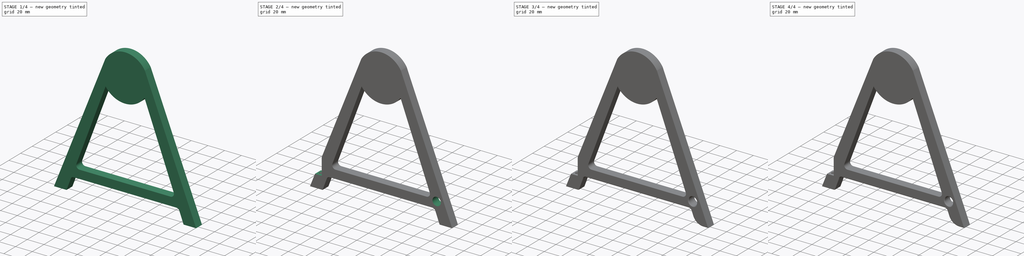
[diagram: build sequence overview — one tinted view per stage of 4, left to right]
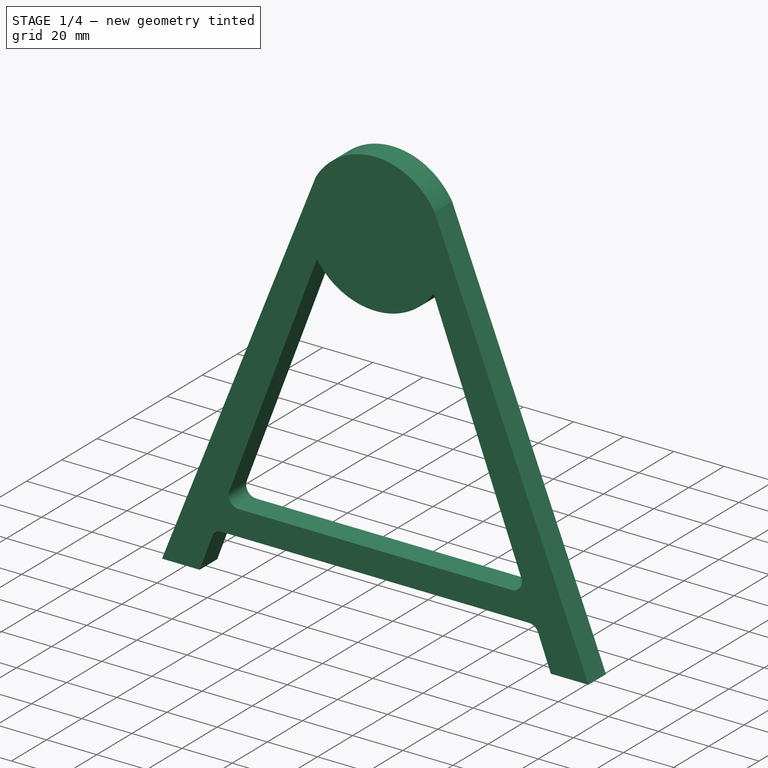
[diagram: stage 1 of 4 — iso view after this stage's code; geometry added in this stage tinted green]
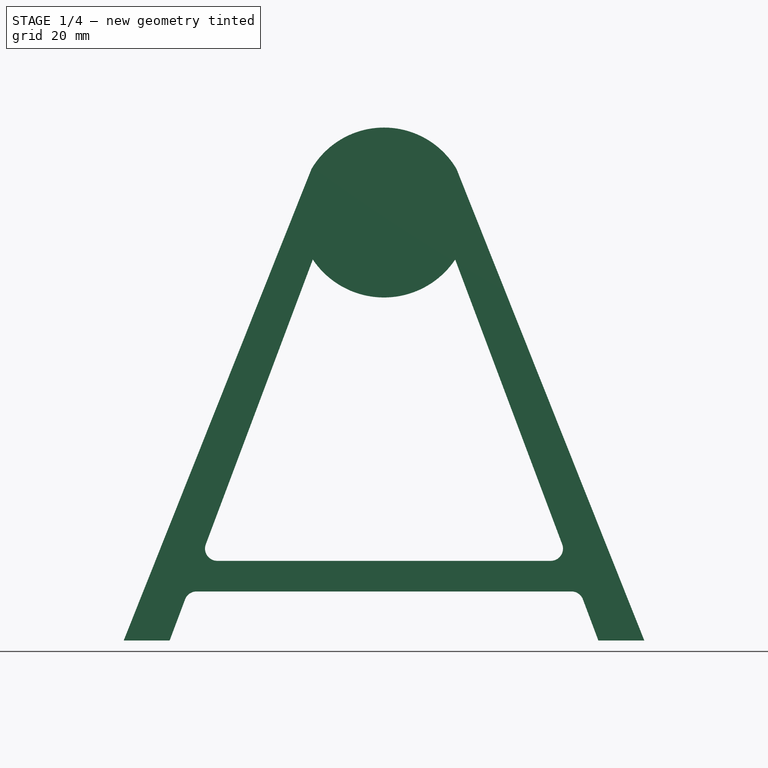
[diagram: stage 1 of 4 — front view after this stage's code; geometry added in this stage tinted green]
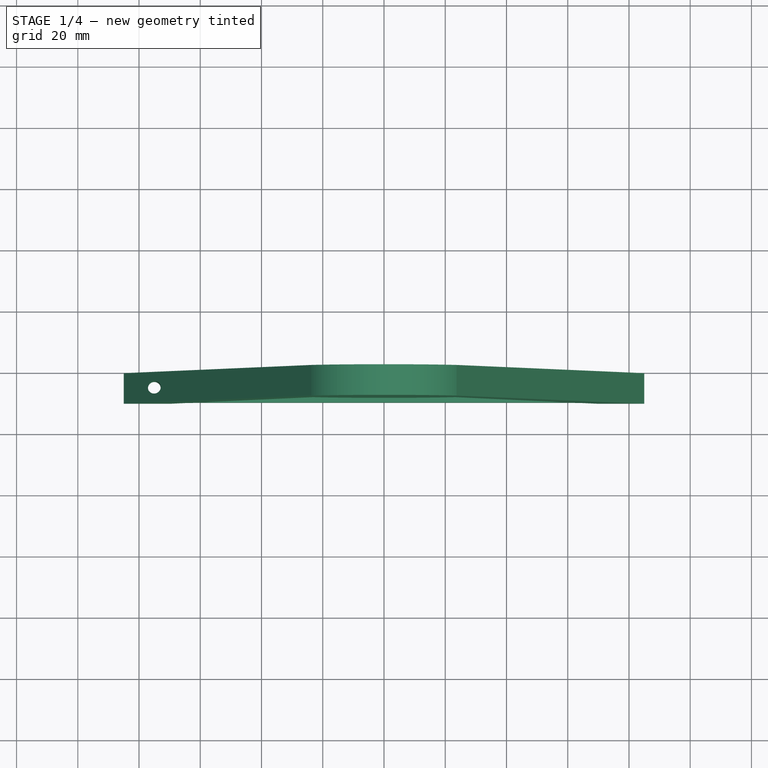
[diagram: stage 1 of 4 — top view after this stage's code; geometry added in this stage tinted green]
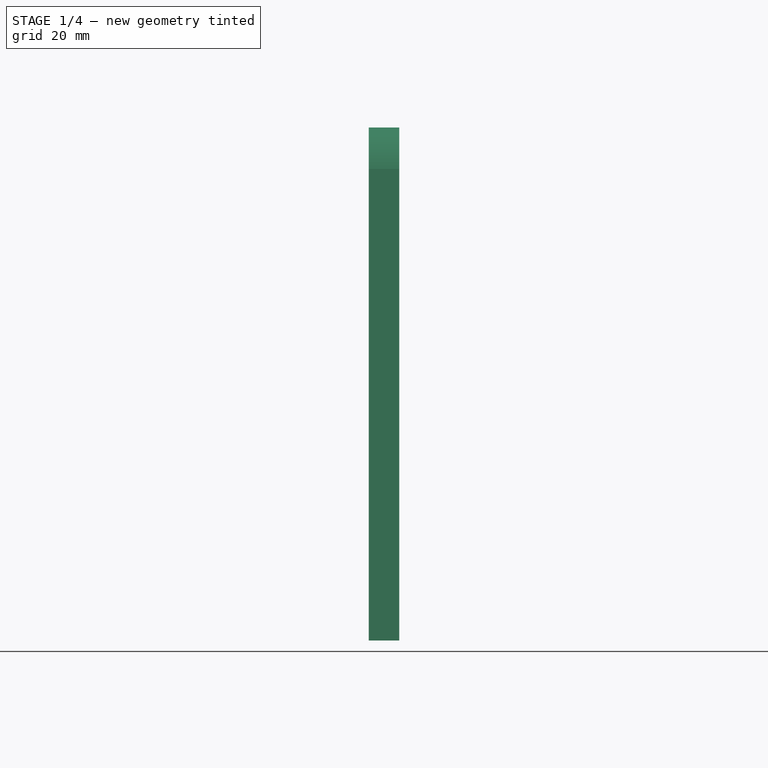
[diagram: stage 1 of 4 — right view after this stage's code; geometry added in this stage tinted green]
FCSTD DOCUMENT  (FreeCAD 0.18R16117 (Git))
Label: Support bobine PIED 2
License: All rights reserved
LicenseURL: http://en.wikipedia.org/wiki/All_rights_reserved
objects: Sketcher::SketchObject×6, PartDesign::Fillet×6, PartDesign::Pocket×5, PartDesign::Pad×1, PartDesign::Body×1
note: 25 computed .brp shape members not serialized (recipe doc carries the construction recipe); baked Part::Feature solids carry a one-line shape summary decoded from their .brp

FEATURE [Sketcher::SketchObject] Sketch
  MapMode = 5
  Placement = pos=(0,0,0) rot=(1,0,0;1.5708rad)
  Support = -> [XZ_Plane001]
  sketch-geometry (14):
    g0: Circle [constr] CenterX=0 CenterY=140 CenterZ=0 NormalX=0 NormalY=0 NormalZ=1 AngleXU=0 Radius=100
    g1: Circle [constr] CenterX=0 CenterY=140 CenterZ=0 NormalX=0 NormalY=0 NormalZ=1 AngleXU=0 Radius=27.5
    g2: ArcOfCircle CenterX=0 CenterY=140 CenterZ=0 NormalX=0 NormalY=0 NormalZ=1 AngleXU=0 Radius=27.5 StartAngle=0.534128 EndAngle=2.60746
    g3: LineSegment StartX=-23.6696 StartY=154 StartZ=0 EndX=-85 EndY=0 EndZ=0
    g4: LineSegment StartX=85 StartY=0 StartZ=0 EndX=23.6696 EndY=154 EndZ=0
    g5: LineSegment StartX=-85 StartY=0 StartZ=0 EndX=-70 EndY=0 EndZ=0
    g6: LineSegment StartX=-70 StartY=0 StartZ=0 EndX=-63.987 EndY=16 EndZ=0
    g7: LineSegment StartX=-63.987 StartY=16 StartZ=0 EndX=63.987 EndY=16 EndZ=0
    g8: LineSegment StartX=63.987 StartY=16 StartZ=0 EndX=70 EndY=0 EndZ=0
    g9: LineSegment StartX=70 StartY=0 StartZ=0 EndX=85 EndY=0 EndZ=0
    g10: LineSegment StartX=-60.2289 StartY=26 StartZ=0 EndX=60.2289 EndY=26 EndZ=0
    g11: ArcOfCircle CenterX=0 CenterY=140 CenterZ=0 NormalX=0 NormalY=0 NormalZ=1 AngleXU=0 Radius=28 StartAngle=3.73264 EndAngle=5.69214
    g12: LineSegment StartX=-60.2289 StartY=26 StartZ=0 EndX=-23.25 EndY=124.398 EndZ=0
    g13: LineSegment StartX=23.25 StartY=124.398 StartZ=0 EndX=60.2289 EndY=26 EndZ=0
  constraints (41):
    c: Radius(g0) = 100
    c: Radius(g1) = 27.5
    c: Coincident(g1,g0)
    c: Horizontal(g2,g2)
    c: Radius(g2) = 27.5
    c: Coincident(g4,g2)
    c: Coincident(g3,g2)
    c: PointOnObject(g3,g-1)
    c: Coincident(g5,g6)
    c: Coincident(g6,g7)
    c: Coincident(g7,g8)
    c: Coincident(g8,g9)
    c: Coincident(g5,g3)
    c: Coincident(g9,g4)
    c: PointOnObject(g4,g-1)
    c: Horizontal(g5)
    c: Horizontal(g9)
    c: Horizontal(g7)
    c: DistanceY(g8,g7) = 16
    c: DistanceX(g5,g5) = 15
    c: Equal(g5,g9)
    c: Coincident(g10,g12)
    c: Coincident(g10,g13)
    c: Coincident(g13,g11)
    c: Coincident(g11,g12)
    c: Radius(g11) = 28
    c: PointOnObject(g10,g6)
    c: PointOnObject(g10,g8)
    c: Horizontal(g10)
    c: DistanceY(g7,g10) = 10
    c: PointOnObject(g11,g8)
    c: PointOnObject(g11,g6)
    c: DistanceY(g-1,g2) = 140
    c: Coincident(g0,g2)
    c: Coincident(g2,g11)
    c: PointOnObject(g2,g-2)
    c: DistanceY(g2,g2) = 14
    c: DistanceX(g3,g4) = 170
    c: DistanceX(g-1,g4) = 85
    c: Horizontal(g11,g11)
    c: DistanceX(g11,g11) = 46.5
FEATURE [Sketcher::SketchObject] Sketch002
  MapMode = 5
  Placement = pos=(0,0,0) rot=(1,0,0;3.14159rad)
  sketch-geometry (1):
    g0: Circle CenterX=-75 CenterY=5 CenterZ=0 NormalX=0 NormalY=0 NormalZ=1 AngleXU=0 Radius=2.1
  constraints (3):
    c: Radius(g0) = 2.1
    c: DistanceY(g-1,g0) = 5
    c: DistanceX(g0,g-1) = 75
FEATURE [Sketcher::SketchObject] Sketch004
  MapMode = 5
  Placement = pos=(0,-10,-2e-15) rot=(1,0,0;1.5708rad)
  sketch-geometry (1):
    g0: Circle CenterX=66.5 CenterY=24 CenterZ=0 NormalX=0 NormalY=0 NormalZ=1 AngleXU=0 Radius=5
  constraints (3):
    c: Radius(g0) = 5
    c: DistanceY(g-1,g0) = 24
    c: DistanceX(g-1,g0) = 66.5
FEATURE [PartDesign::Pad] Pad
  Length = 10
  Length2 = 100
  Placement = pos=(0,0,0) rot=(1,0,0;1.5708rad)
  Profile = -> Sketch
  Type = 0
FEATURE [PartDesign::Fillet] Fillet
  Base = -> Pad [Edge11,Edge32,Edge29,Edge14]
  BaseFeature = -> Pad
  Placement = pos=(0,0,0) rot=(1,0,0;1.5708rad)
  Radius = 4
FEATURE [PartDesign::Pocket] Pocket001
  BaseFeature = -> Fillet
  Length = 5
  Length2 = 100
  Placement = pos=(0,0,0) rot=(1,0,0;1.5708rad)
  Profile = -> Sketch002
  Type = 1
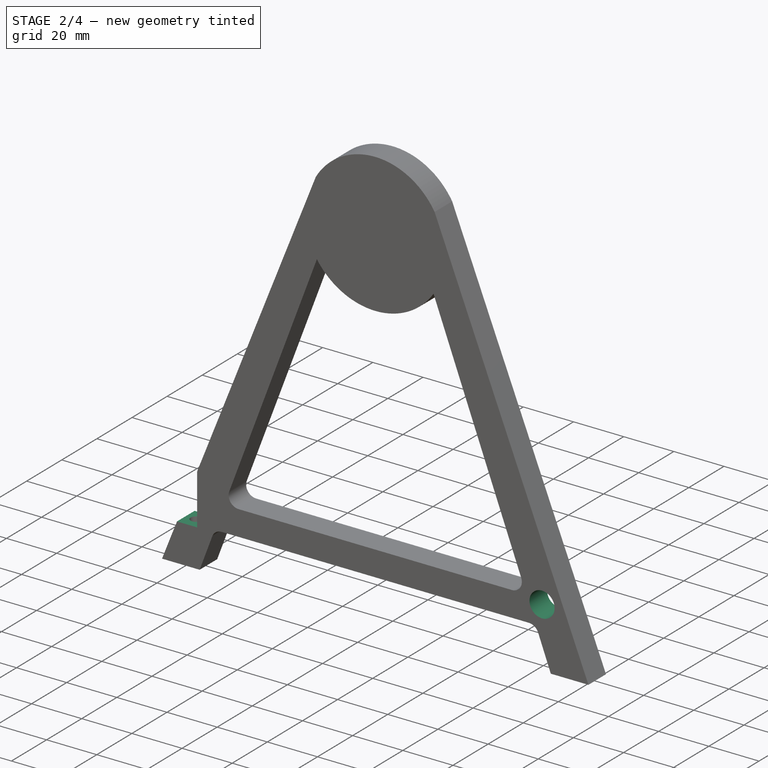
[diagram: stage 2 of 4 — iso view after this stage's code; geometry added in this stage tinted green]
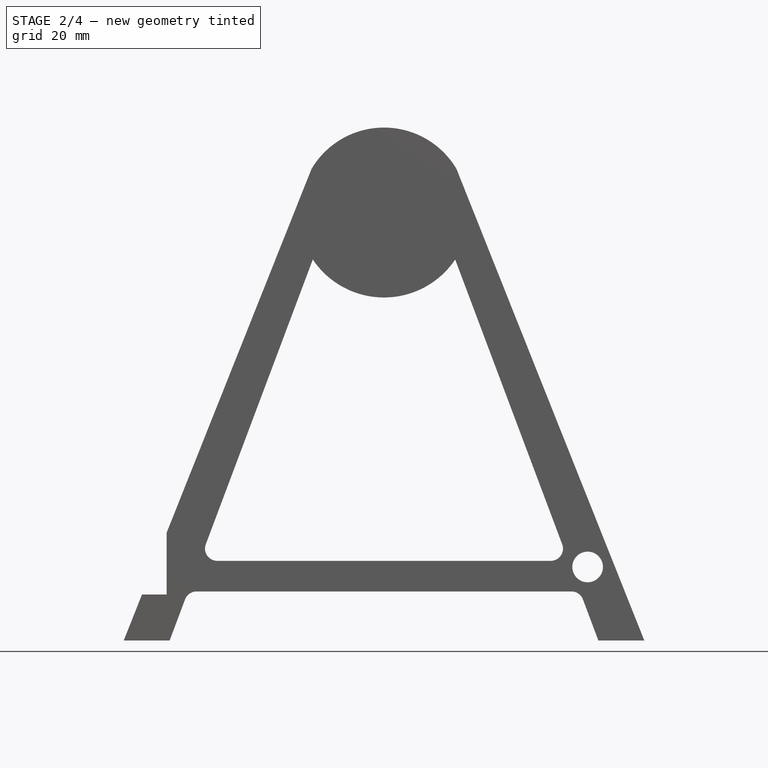
[diagram: stage 2 of 4 — front view after this stage's code; geometry added in this stage tinted green]
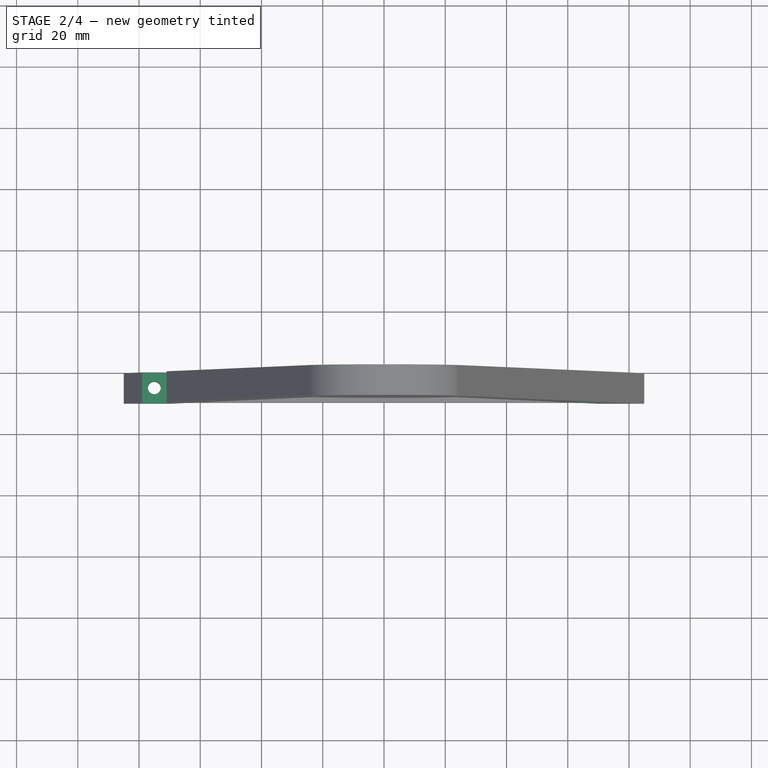
[diagram: stage 2 of 4 — top view after this stage's code; geometry added in this stage tinted green]
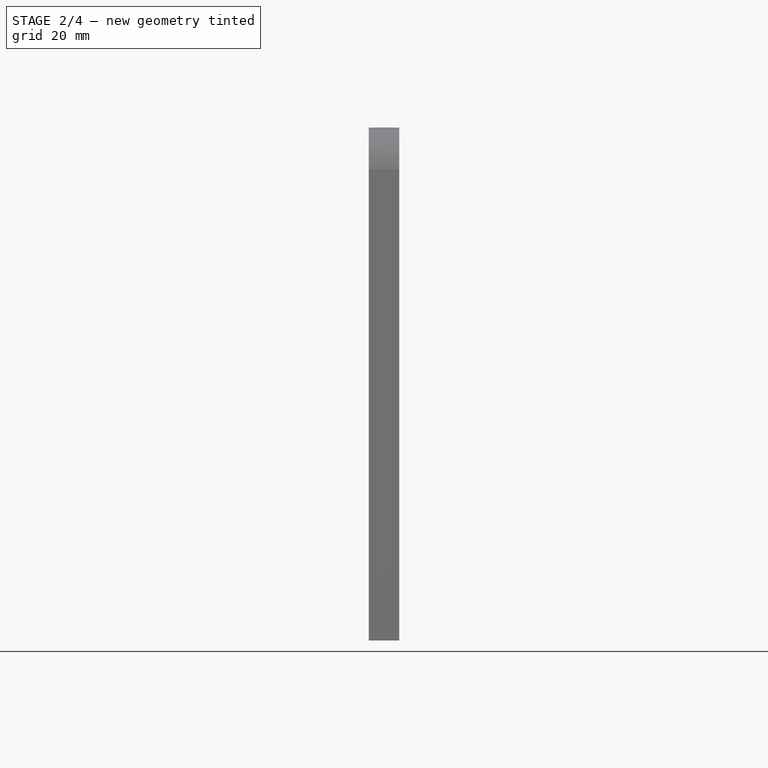
[diagram: stage 2 of 4 — right view after this stage's code; geometry added in this stage tinted green]
FEATURE [Sketcher::SketchObject] Sketch003
  MapMode = 5
  Placement = pos=(0,-10,0) rot=(1,0,0;1.5708rad)
  Support = -> [Pocket001]
  sketch-geometry (4):
    g0: LineSegment StartX=-97 StartY=40 StartZ=0 EndX=-71 EndY=40 EndZ=0
    g1: LineSegment StartX=-71 StartY=15 StartZ=0 EndX=-97 EndY=15 EndZ=0
    g2: LineSegment StartX=-97 StartY=15 StartZ=0 EndX=-97 EndY=40 EndZ=0
    g3: LineSegment StartX=-71 StartY=40 StartZ=0 EndX=-71 EndY=15 EndZ=0
  constraints (12):
    c: Coincident(g1,g2)
    c: Coincident(g2,g0)
    c: Horizontal(g0)
    c: Horizontal(g1)
    c: DistanceY(g-1,g1) = 15
    c: Vertical(g2)
    c: DistanceY(g2,g2) = 25
    c: Coincident(g3,g0)
    c: Coincident(g3,g1)
    c: DistanceX(g0,g0) = 26
    c: Vertical(g3)
    c: DistanceX(g1,g-1) = 71
FEATURE [PartDesign::Pocket] Pocket002
  BaseFeature = -> Pocket001
  Length = 5
  Length2 = 100
  Placement = pos=(0,0,0) rot=(1,0,0;1.5708rad)
  Profile = -> Sketch003
  Type = 1
FEATURE [PartDesign::Pocket] Pocket003
  BaseFeature = -> Pocket002
  Length = 5
  Length2 = 100
  Placement = pos=(0,0,0) rot=(1,0,0;1.5708rad)
  Profile = -> Sketch004
  Type = 1
FEATURE [PartDesign::Fillet] Fillet001
  Base = -> Pocket003 [Edge54,Edge52]
  BaseFeature = -> Pocket003
  Placement = pos=(0,0,0) rot=(1,0,0;1.5708rad)
  Radius = 2
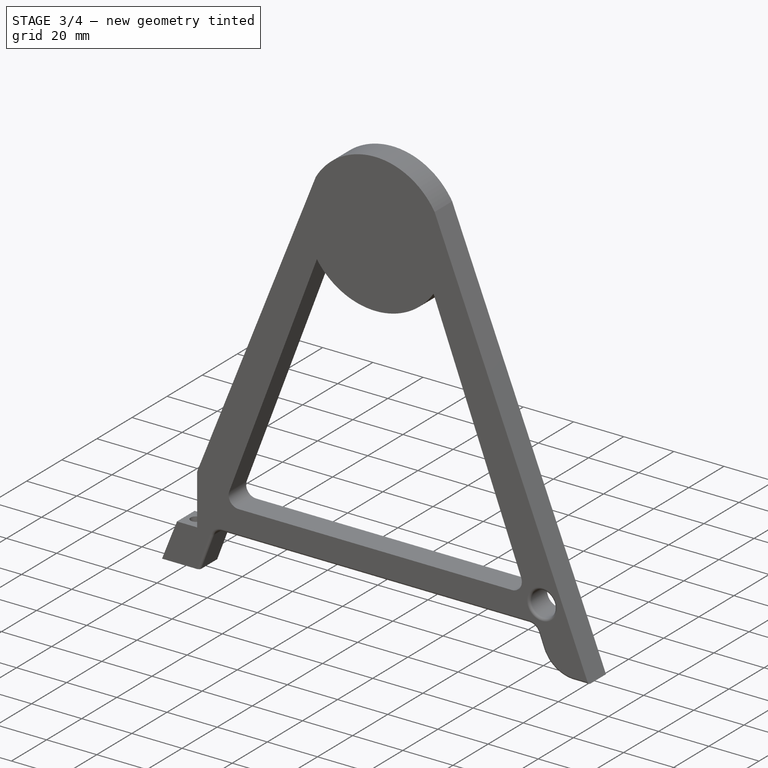
[diagram: stage 3 of 4 — iso view after this stage's code; geometry added in this stage tinted green]
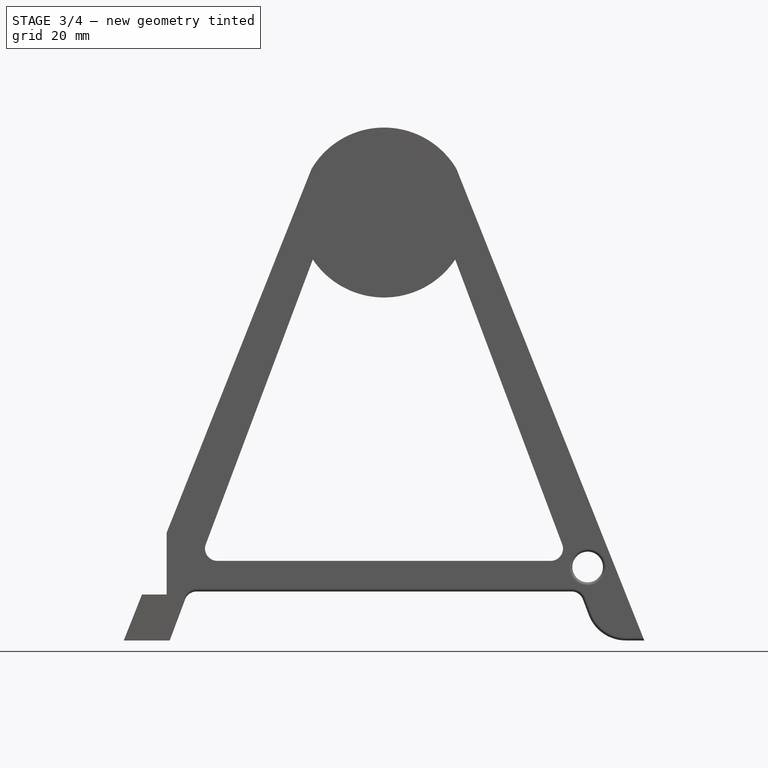
[diagram: stage 3 of 4 — front view after this stage's code; geometry added in this stage tinted green]
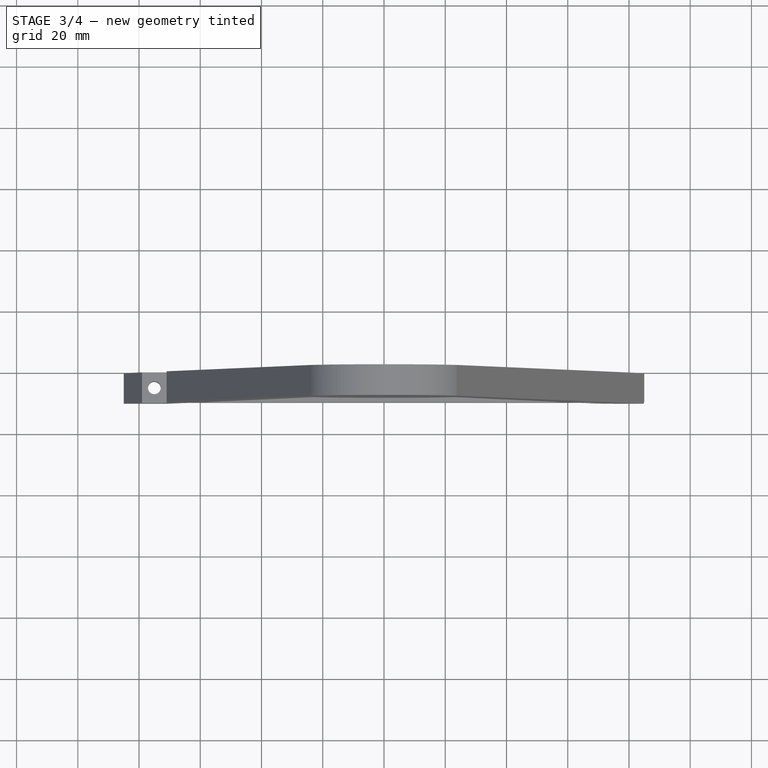
[diagram: stage 3 of 4 — top view after this stage's code; geometry added in this stage tinted green]
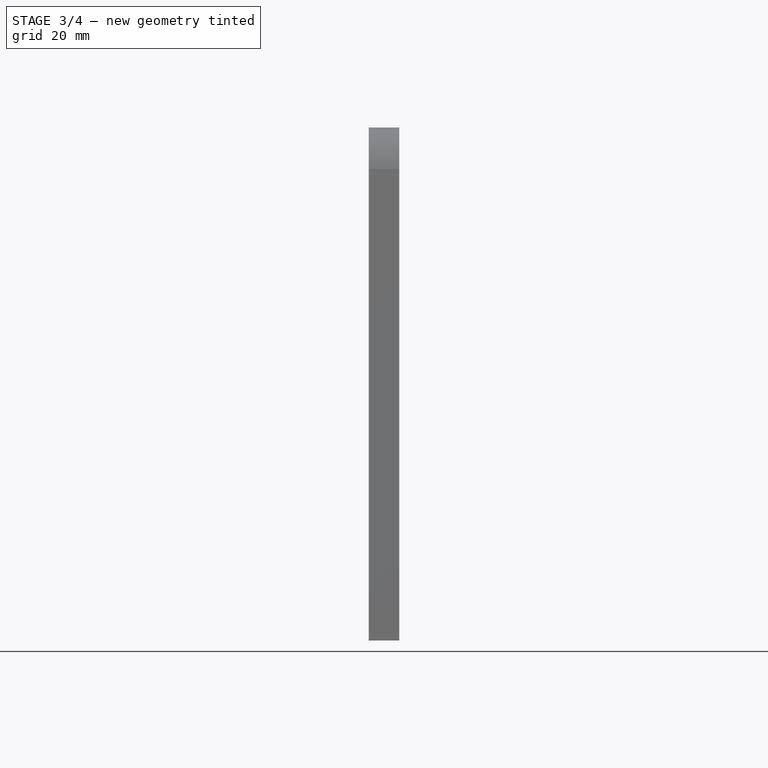
[diagram: stage 3 of 4 — right view after this stage's code; geometry added in this stage tinted green]
FEATURE [PartDesign::Fillet] Fillet002
  Base = -> Fillet001 [Edge67]
  BaseFeature = -> Fillet001
  Placement = pos=(0,0,0) rot=(1,0,0;1.5708rad)
  Radius = 1
FEATURE [PartDesign::Fillet] Fillet003
  Base = -> Fillet002 [Edge62]
  BaseFeature = -> Fillet002
  Placement = pos=(0,0,0) rot=(1,0,0;1.5708rad)
  Radius = 13
FEATURE [PartDesign::Fillet] Fillet004
  Base = -> Fillet003 [Edge36,Edge32]
  BaseFeature = -> Fillet003
  Placement = pos=(0,0,0) rot=(1,0,0;1.5708rad)
  Radius = 1
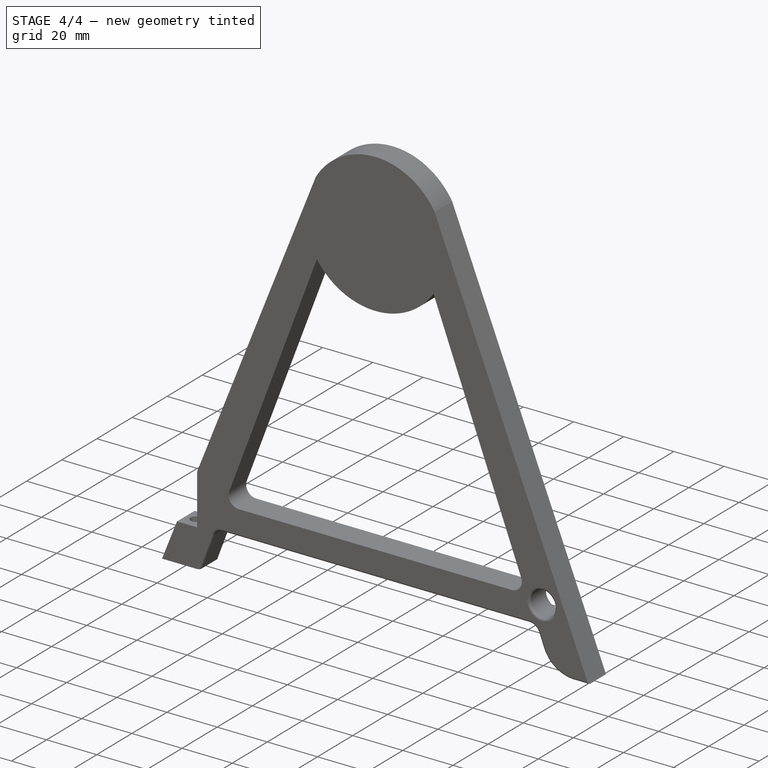
[diagram: stage 4 of 4 — iso view after this stage's code; geometry added in this stage tinted green]
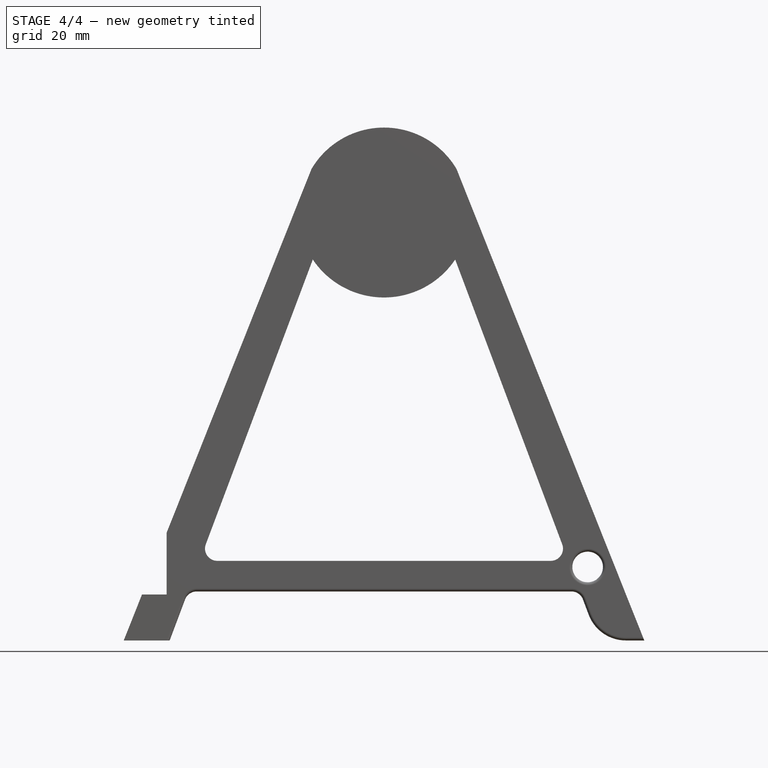
[diagram: stage 4 of 4 — front view after this stage's code; geometry added in this stage tinted green]
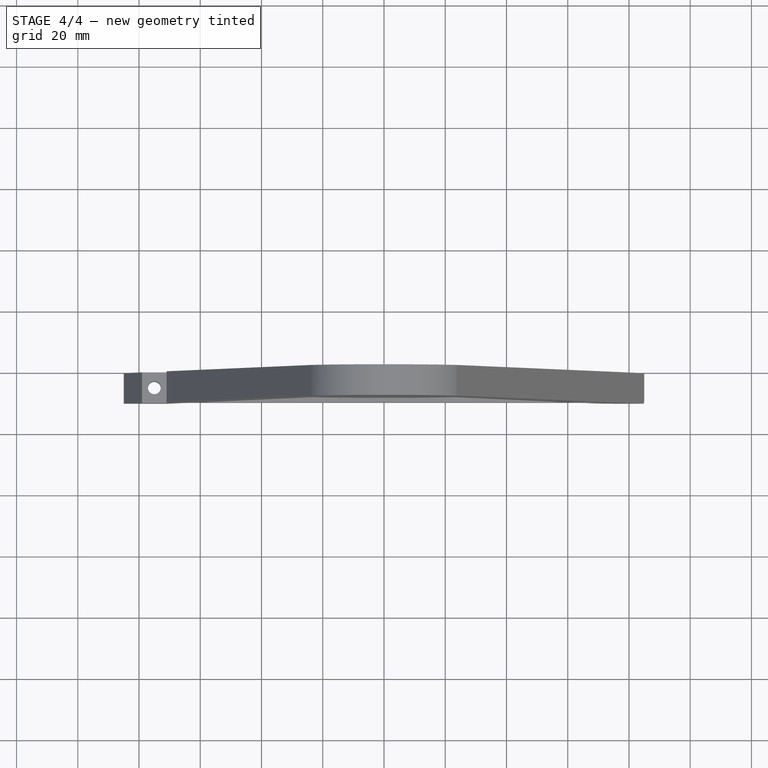
[diagram: stage 4 of 4 — top view after this stage's code; geometry added in this stage tinted green]
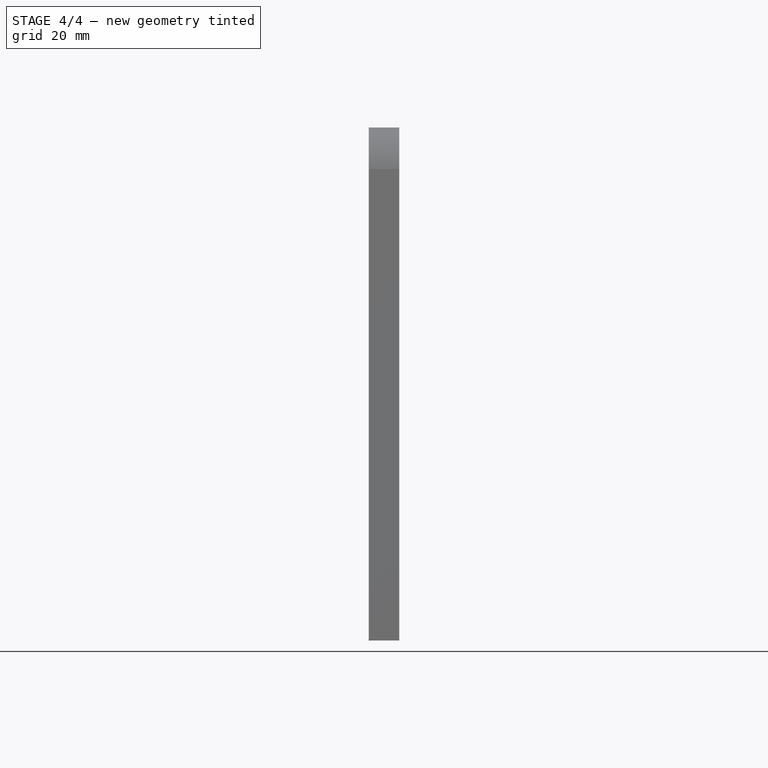
[diagram: stage 4 of 4 — right view after this stage's code; geometry added in this stage tinted green]
FEATURE [Sketcher::SketchObject] Sketch005
  MapMode = 5
  Placement = pos=(0,0,0) rot=(1,0,0;3.14159rad)
  Support = -> [Fillet004]
  sketch-geometry (1):
    g0: Circle CenterX=0 CenterY=-140 CenterZ=0 NormalX=0 NormalY=0 NormalZ=1 AngleXU=0 Radius=9.7
  constraints (3):
    c: Radius(g0) = 9.7
    c: PointOnObject(g0,g-2)
    c: DistanceY(g0,g-1) = 140
FEATURE [PartDesign::Pocket] Pocket004
  BaseFeature = -> Fillet004
  Length = 6.2
  Length2 = 100
  Placement = pos=(0,0,0) rot=(1,0,0;1.5708rad)
  Profile = -> Sketch005
  Type = 0
FEATURE [PartDesign::Fillet] Fillet005
  Base = -> Pocket004 [Edge31]
  BaseFeature = -> Pocket004
  Placement = pos=(0,0,0) rot=(1,0,0;1.5708rad)
  Radius = 1
FEATURE [Sketcher::SketchObject] Sketch006
  MapMode = 5
  Placement = pos=(0,-1e-16,0) rot=(-1,0,0;1.5708rad)
  Support = -> [Fillet005]
  sketch-geometry (1):
    g0: Circle CenterX=0 CenterY=-140 CenterZ=0 NormalX=0 NormalY=0 NormalZ=1 AngleXU=0 Radius=9.7
  constraints (3):
    c: DistanceY(g0,g-1) = 140
    c: Radius(g0) = 9.7
    c: PointOnObject(g0,g-2)
FEATURE [PartDesign::Pocket] Pocket
  BaseFeature = -> Fillet005
  Length = 6.2
  Length2 = 100
  Placement = pos=(0,0,0) rot=(1,0,0;1.5708rad)
  Profile = -> Sketch006
  Type = 0
FEATURE [PartDesign::Body] Body001
  Group = -> [Sketch,Pad,Fillet,Sketch002,Pocket001,Sketch003,Pocket002,Sketch004,Pocket003,Fillet001,Fillet002,Fillet003,Fillet004,Sketch005,Pocket004,Fillet005,Sketch006,Pocket]
  Origin = -> Origin001
  Tip = -> Pocket
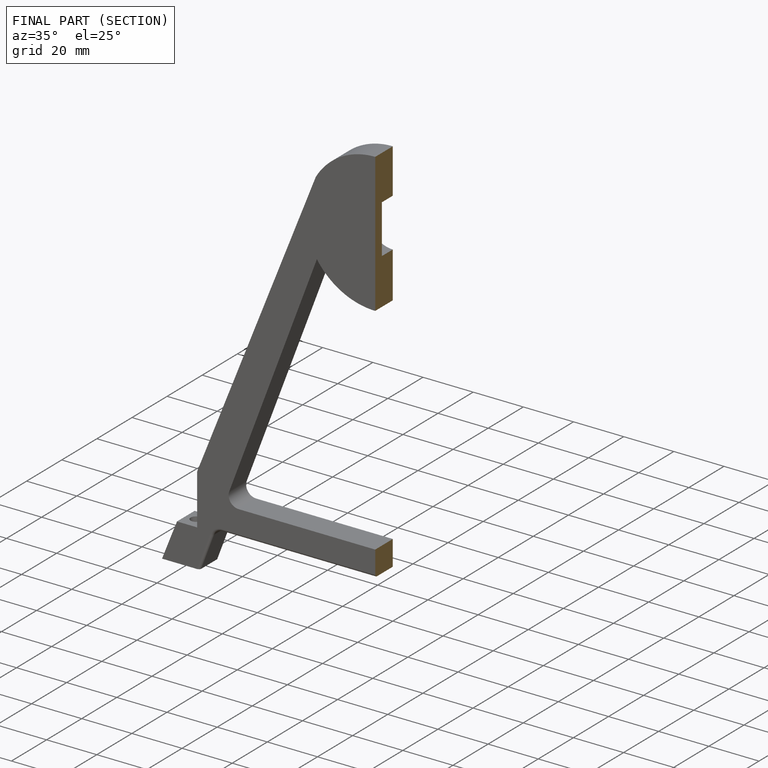
[diagram: finished part — half-section view (interior)]
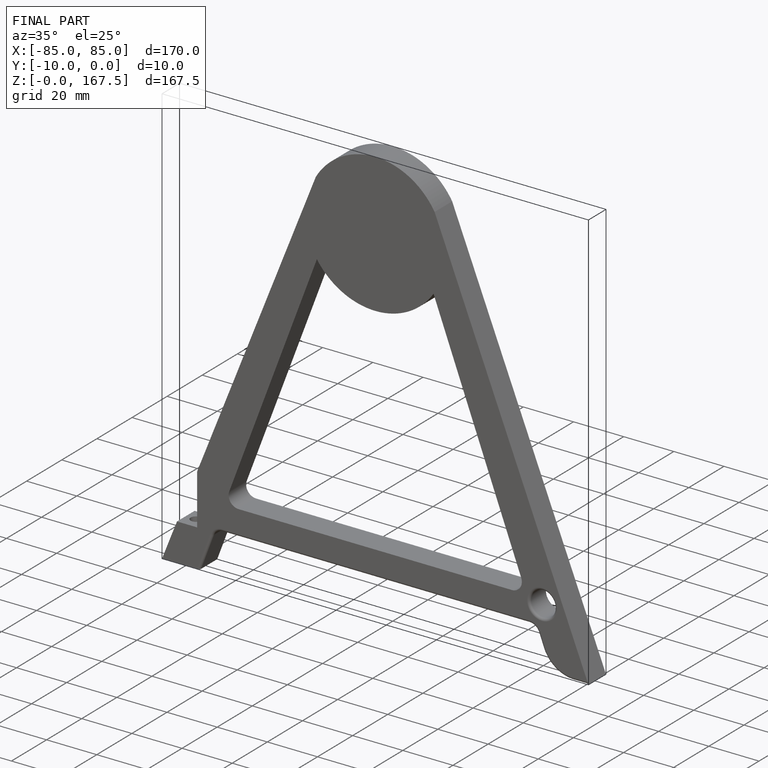
[diagram: finished part — iso view with bounding-box wireframe]
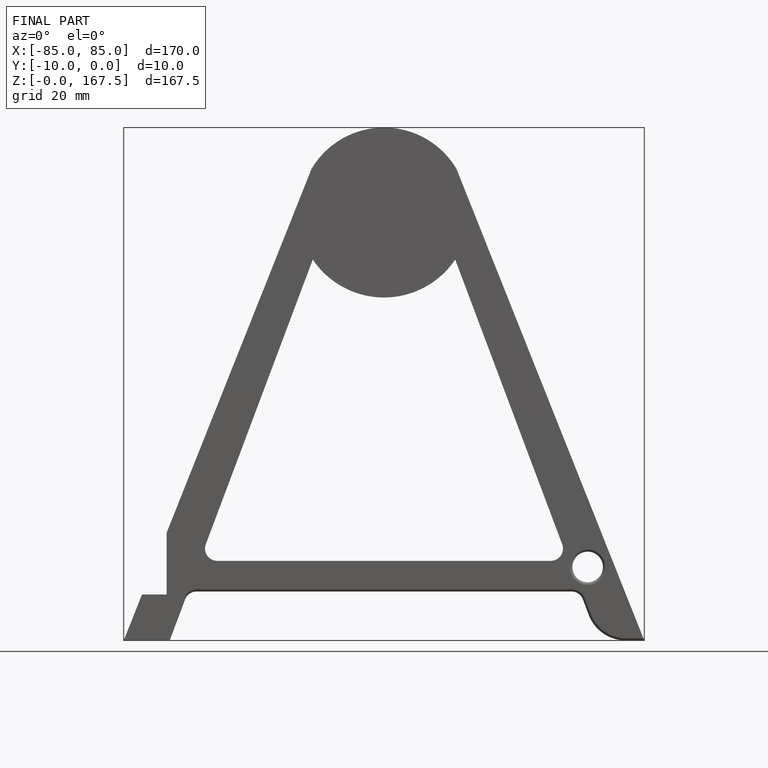
[diagram: finished part — front view with bounding-box wireframe]
